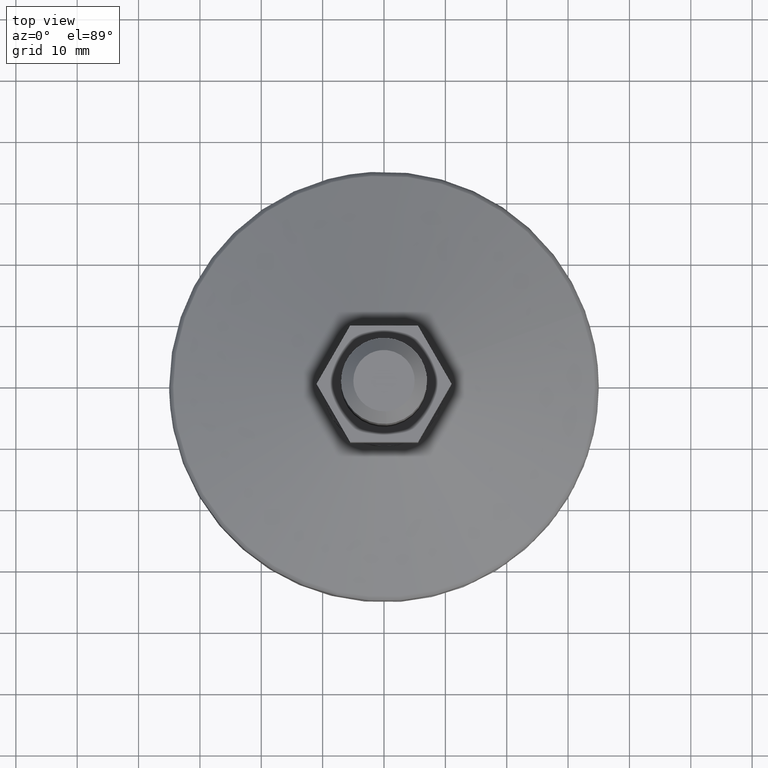
[diagram: clean part render]
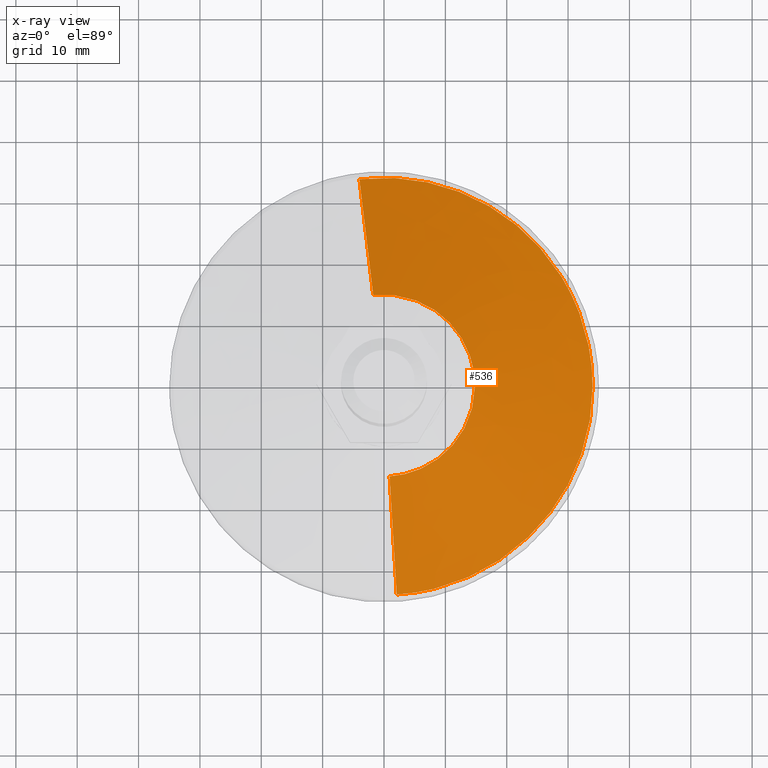
[diagram: x-ray — body ghosted, one internal face saturated and labeled with its STEP entity id]
A machine part, top view, then the same camera in x-ray: the body is ghosted and one INTERNAL B-rep face — a face not visible from any outside direction — is saturated and labeled: STEP entity #536.
In plain terms, the highlighted face is a freeform B-spline surface patch.
Its self-contained STEP definition (entity closure, byte-faithful):
#282=CARTESIAN_POINT('',(31.828885815436841,11.954999104414579,12.797173590103471));
#283=VERTEX_POINT('',#282);
#284=CARTESIAN_POINT('',(33.999999526251599,0.0,12.797173590102400));
#285=VERTEX_POINT('',#284);
#286=CARTESIAN_POINT('',(31.828885815436845,11.954999104414581,12.797173590103474));
#287=CARTESIAN_POINT('',(33.999999526251607,6.174644474767230,12.797173590102398));
#288=CARTESIAN_POINT('',(33.999999526251599,0.0,12.797173590102400));
#296=(BOUNDED_CURVE()B_SPLINE_CURVE(2,(#286,#287,#288),.UNSPECIFIED.,.F.,.U.)B_SPLINE_CURVE_WITH_KNOTS((3,3),(0.440284229952134,0.500000000000000),.UNSPECIFIED.)CURVE()GEOMETRIC_REPRESENTATION_ITEM()RATIONAL_B_SPLINE_CURVE((0.893499626902927,0.930038623587026,1.0))REPRESENTATION_ITEM(''));
#297=EDGE_CURVE('',#283,#285,#296,.T.);
#299=CARTESIAN_POINT('',(2.075650322541660,-33.936582791699237,12.797173590098041));
#300=VERTEX_POINT('',#299);
#301=CARTESIAN_POINT('',(33.999999526251599,0.0,12.797173590102400));
#302=CARTESIAN_POINT('',(33.999999526251599,-31.984005828956846,12.797173590102398));
#303=CARTESIAN_POINT('',(2.075650322541661,-33.936582791699244,12.797173590098042));
#311=(BOUNDED_CURVE()B_SPLINE_CURVE(2,(#301,#302,#303),.UNSPECIFIED.,.F.,.U.)B_SPLINE_CURVE_WITH_KNOTS((3,3),(0.500000000000000,0.739332962241006),.UNSPECIFIED.)CURVE()GEOMETRIC_REPRESENTATION_ITEM()RATIONAL_B_SPLINE_CURVE((1.0,0.719603993284294,0.976072041671139))REPRESENTATION_ITEM(''));
#312=EDGE_CURVE('',#285,#300,#311,.T.);
#381=CARTESIAN_POINT('',(-4.013163922530515,33.762323425930923,12.797173590096291));
#382=VERTEX_POINT('',#381);
#383=CARTESIAN_POINT('',(-4.013163922530515,33.762323425930909,12.797173590096294));
#384=CARTESIAN_POINT('',(-2.013620040226103,33.999999526251599,12.797173590102405));
#385=CARTESIAN_POINT('',(0.0,33.999999526251599,12.797173590102400));
#386=CARTESIAN_POINT('',(23.548735330280937,33.999999526251592,12.797173590102402));
#387=CARTESIAN_POINT('',(31.828885815436845,11.954999104414581,12.797173590103474));
#395=(BOUNDED_CURVE()B_SPLINE_CURVE(2,(#383,#384,#385,#386,#387),.UNSPECIFIED.,.F.,.U.)B_SPLINE_CURVE_WITH_KNOTS((3,2,3),(0.229562473514470,0.250000000000000,0.440284229952134),.UNSPECIFIED.)CURVE()GEOMETRIC_REPRESENTATION_ITEM()RATIONAL_B_SPLINE_CURVE((0.956026754185585,0.976055948332272,1.0,0.777068157599521,0.893499626902927))REPRESENTATION_ITEM(''));
#396=EDGE_CURVE('',#382,#283,#395,.T.);
#465=CARTESIAN_POINT('',(-1.693333192364198,14.245832967148969,19.872570660247447));
#466=CARTESIAN_POINT('',(-1.285623573268192,14.294295435609293,19.872570660247444));
#467=CARTESIAN_POINT('',(-0.875809621169193,14.319360730693891,19.872570660247440));
#468=CARTESIAN_POINT('',(13.443551109524694,15.195170351863077,19.872570660247437));
#469=CARTESIAN_POINT('',(14.319360730693891,0.875809621169193,19.872570660247440));
#470=CARTESIAN_POINT('',(15.195170351863077,-13.443551109524694,19.872570660247437));
#471=CARTESIAN_POINT('',(0.875809621169193,-14.319360730693891,19.872570660247440));
#472=CARTESIAN_POINT('',(-4.071159690662442,34.250235687397513,12.620288663348772));
#473=CARTESIAN_POINT('',(-3.090932660185616,34.366750528655757,12.620288663348775));
#474=CARTESIAN_POINT('',(-2.105646332615850,34.427013222048373,12.620288663348770));
#475=CARTESIAN_POINT('',(32.321366889432532,36.532659554664221,12.620288663348772));
#476=CARTESIAN_POINT('',(34.427013222048373,2.105646332615850,12.620288663348770));
#477=CARTESIAN_POINT('',(36.532659554664221,-32.321366889432532,12.620288663348772));
#478=CARTESIAN_POINT('',(2.105646332615850,-34.427013222048373,12.620288663348770));
#486=(BOUNDED_SURFACE()B_SPLINE_SURFACE(2,1,((#465,#472),(#466,#473),(#467,#474),(#468,#475),(#469,#476),(#470,#477),(#471,#478)),.UNSPECIFIED.,.F.,.F.,.U.)B_SPLINE_SURFACE_WITH_KNOTS((3,2,2,3),(2,2),(0.0,2.285885363158045,59.433019442109092,116.580153521060100),(0.0,21.410879972865128),.UNSPECIFIED.)GEOMETRIC_REPRESENTATION_ITEM()RATIONAL_B_SPLINE_SURFACE(((0.977505800795127,0.977505800795127),(0.988284271247462,0.988284271247462),(1.0,1.0),(0.707106781186548,0.707106781186548),(1.0,1.0),(0.707106781186548,0.707106781186548),(1.0,1.0)))REPRESENTATION_ITEM('')SURFACE());
#487=ORIENTED_EDGE('',*,*,#396,.F.);
#488=CARTESIAN_POINT('',(-1.749914429957303,14.721844929565030,19.699999999985891));
#489=VERTEX_POINT('',#488);
#490=CARTESIAN_POINT('',(-1.749914429957303,14.721844929565030,19.699999999985891));
#491=CARTESIAN_POINT('',(-4.013163922530515,33.762323425930923,12.797173590096291));
#492=QUASI_UNIFORM_CURVE('',1,(#490,#491),.UNSPECIFIED.,.F.,.U.);
#493=EDGE_CURVE('',#489,#382,#492,.T.);
#494=ORIENTED_EDGE('',*,*,#493,.F.);
#495=CARTESIAN_POINT('',(14.825482071122339,0.0,19.699999999999999));
#496=VERTEX_POINT('',#495);
#497=CARTESIAN_POINT('',(-1.749914429957303,14.721844929565025,19.699999999985891));
#498=CARTESIAN_POINT('',(-0.878026124350510,14.825482071122343,19.699999999999996));
#499=CARTESIAN_POINT('',(0.0,14.825482071122339,19.699999999999999));
#500=CARTESIAN_POINT('',(14.825482071122341,14.825482071122341,19.700000000000006));
#501=CARTESIAN_POINT('',(14.825482071122339,0.0,19.699999999999999));
#509=(BOUNDED_CURVE()B_SPLINE_CURVE(2,(#497,#498,#499,#500,#501),.UNSPECIFIED.,.F.,.U.)B_SPLINE_CURVE_WITH_KNOTS((3,2,3),(0.229562473509439,0.250000000000000,0.500000000000000),.UNSPECIFIED.)CURVE()GEOMETRIC_REPRESENTATION_ITEM()RATIONAL_B_SPLINE_CURVE((0.956026754175724,0.976055948326378,1.0,0.707106781186548,1.0))REPRESENTATION_ITEM(''));
#510=EDGE_CURVE('',#489,#496,#509,.T.);
#511=ORIENTED_EDGE('',*,*,#510,.T.);
#512=CARTESIAN_POINT('',(0.905074028356138,-14.797829558567940,19.699999999999250));
#513=VERTEX_POINT('',#512);
#514=CARTESIAN_POINT('',(14.825482071122339,0.0,19.699999999999999));
#515=CARTESIAN_POINT('',(14.825482071122343,-13.946420929080404,19.699999999999996));
#516=CARTESIAN_POINT('',(0.905074028356138,-14.797829558567935,19.699999999999250));
#524=(BOUNDED_CURVE()B_SPLINE_CURVE(2,(#514,#515,#516),.UNSPECIFIED.,.F.,.U.)B_SPLINE_CURVE_WITH_KNOTS((3,3),(0.500000000000000,0.739332962241647),.UNSPECIFIED.)CURVE()GEOMETRIC_REPRESENTATION_ITEM()RATIONAL_B_SPLINE_CURVE((1.0,0.719603993283542,0.976072041672514))REPRESENTATION_ITEM(''));
#525=EDGE_CURVE('',#496,#513,#524,.T.);
#526=ORIENTED_EDGE('',*,*,#525,.T.);
#527=CARTESIAN_POINT('',(0.905074028356138,-14.797829558567940,19.699999999999250));
#528=CARTESIAN_POINT('',(2.075650322541660,-33.936582791699237,12.797173590098041));
#529=QUASI_UNIFORM_CURVE('',1,(#527,#528),.UNSPECIFIED.,.F.,.U.);
#530=EDGE_CURVE('',#513,#300,#529,.T.);
#531=ORIENTED_EDGE('',*,*,#530,.T.);
#532=ORIENTED_EDGE('',*,*,#312,.F.);
#533=ORIENTED_EDGE('',*,*,#297,.F.);
#534=EDGE_LOOP('',(#487,#494,#511,#526,#531,#532,#533));
#535=FACE_OUTER_BOUND('',#534,.T.);
#536=ADVANCED_FACE('',(#535),#486,.T.);